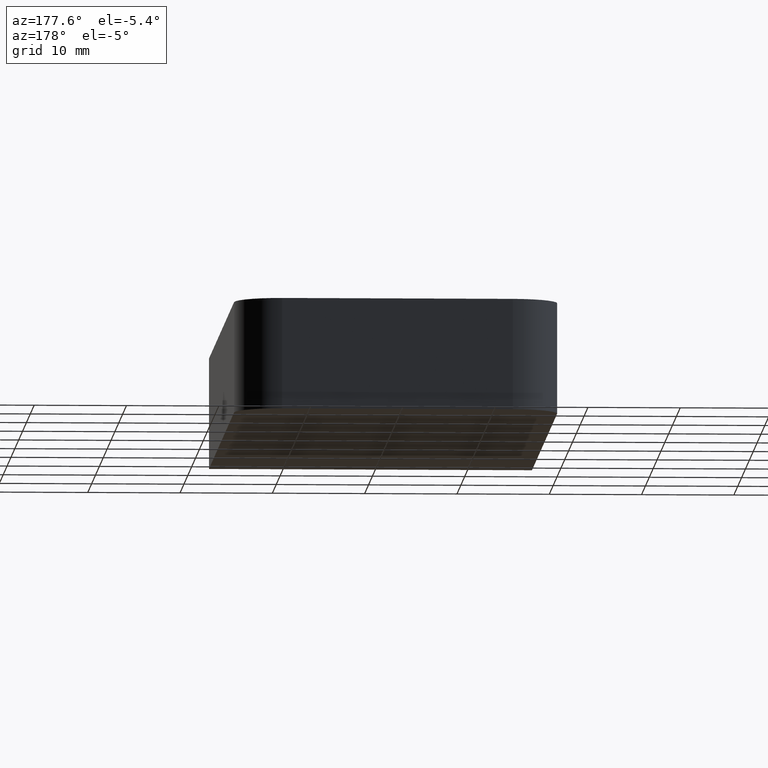
[diagram: clean part render]
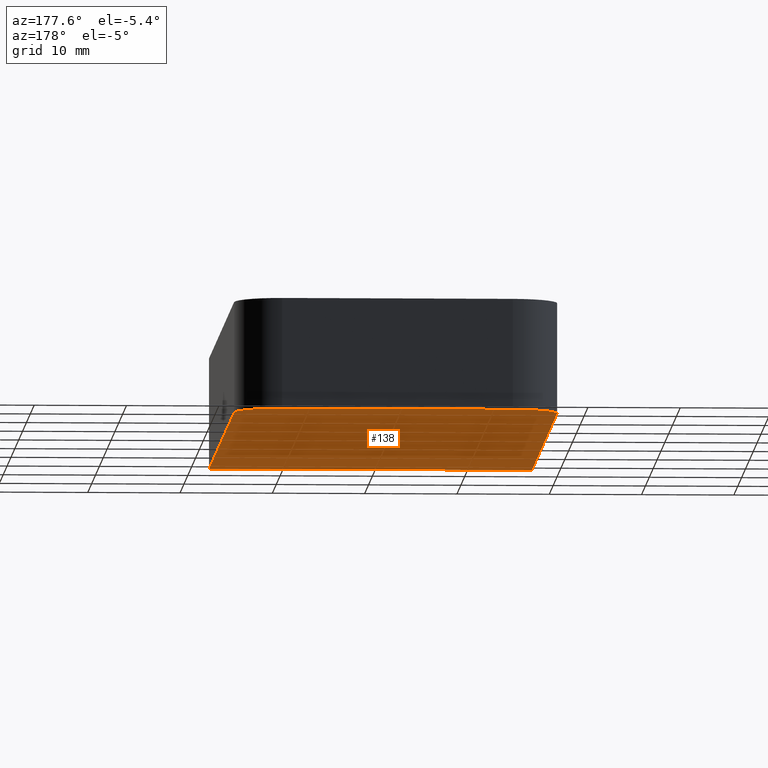
[diagram: same view with one face highlighted and labeled with its STEP entity id]
A machine part, auxiliary view. The second image highlights one B-rep face of the part: STEP entity #138.
In plain terms, the highlighted planar face has unit normal (0, 0, 1).
Its self-contained STEP definition (entity closure, byte-faithful):
#18=FACE_OUTER_BOUND('',#26,.T.);
#26=EDGE_LOOP('',(#96,#97,#98,#99,#100,#101));
#34=CIRCLE('',#167,5.);
#35=CIRCLE('',#168,5.);
#38=LINE('',#222,#52);
#39=LINE('',#224,#53);
#40=LINE('',#226,#54);
#41=LINE('',#230,#55);
#52=VECTOR('',#182,10.);
#53=VECTOR('',#183,10.);
#54=VECTOR('',#184,10.);
#55=VECTOR('',#187,10.);
#66=VERTEX_POINT('',#220);
#67=VERTEX_POINT('',#221);
#68=VERTEX_POINT('',#223);
#69=VERTEX_POINT('',#225);
#70=VERTEX_POINT('',#227);
#71=VERTEX_POINT('',#229);
#78=EDGE_CURVE('',#66,#67,#38,.T.);
#79=EDGE_CURVE('',#68,#66,#39,.T.);
#80=EDGE_CURVE('',#69,#68,#40,.T.);
#81=EDGE_CURVE('',#70,#69,#34,.T.);
#82=EDGE_CURVE('',#71,#70,#41,.T.);
#83=EDGE_CURVE('',#67,#71,#35,.T.);
#96=ORIENTED_EDGE('',*,*,#78,.F.);
#97=ORIENTED_EDGE('',*,*,#79,.F.);
#98=ORIENTED_EDGE('',*,*,#80,.F.);
#99=ORIENTED_EDGE('',*,*,#81,.F.);
#100=ORIENTED_EDGE('',*,*,#82,.F.);
#101=ORIENTED_EDGE('',*,*,#83,.F.);
#132=PLANE('',#166);
#138=ADVANCED_FACE('',(#18),#132,.F.);
#166=AXIS2_PLACEMENT_3D('',#219,#180,#181);
#167=AXIS2_PLACEMENT_3D('',#228,#185,#186);
#168=AXIS2_PLACEMENT_3D('',#231,#188,#189);
#180=DIRECTION('center_axis',(0.,0.,1.));
#181=DIRECTION('ref_axis',(1.,0.,0.));
#182=DIRECTION('',(-1.70803542250024E-16,1.,0.));
#183=DIRECTION('',(1.,0.,0.));
#184=DIRECTION('',(-3.41607084500048E-17,-1.,0.));
#185=DIRECTION('center_axis',(0.,0.,1.));
#186=DIRECTION('ref_axis',(8.88178419700126E-16,1.,0.));
#187=DIRECTION('',(-1.,-1.77635683940025E-16,0.));
#188=DIRECTION('center_axis',(0.,0.,1.));
#189=DIRECTION('ref_axis',(1.,0.,0.));
#219=CARTESIAN_POINT('Origin',(0.,-0.75266928424039,-6.));
#220=CARTESIAN_POINT('',(17.5,-35.,-6.));
#221=CARTESIAN_POINT('',(17.5,30.,-6.));
#222=CARTESIAN_POINT('',(17.5,-35.,-6.));
#223=CARTESIAN_POINT('',(-17.5,-35.,-6.));
#224=CARTESIAN_POINT('',(-17.5,-35.,-6.));
#225=CARTESIAN_POINT('',(-17.5,30.,-6.));
#226=CARTESIAN_POINT('',(-17.5,30.,-6.));
#227=CARTESIAN_POINT('',(-12.5,35.,-6.));
#228=CARTESIAN_POINT('Origin',(-12.5,30.,-6.));
#229=CARTESIAN_POINT('',(12.5,35.,-6.));
#230=CARTESIAN_POINT('',(12.5,35.,-6.));
#231=CARTESIAN_POINT('Origin',(12.5,30.,-6.));